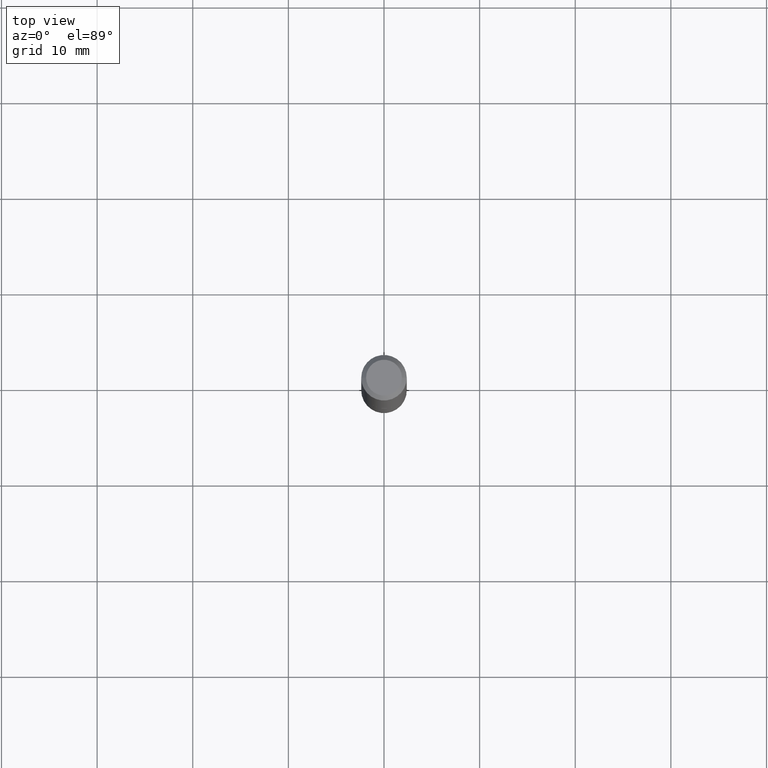
[diagram: clean part render]
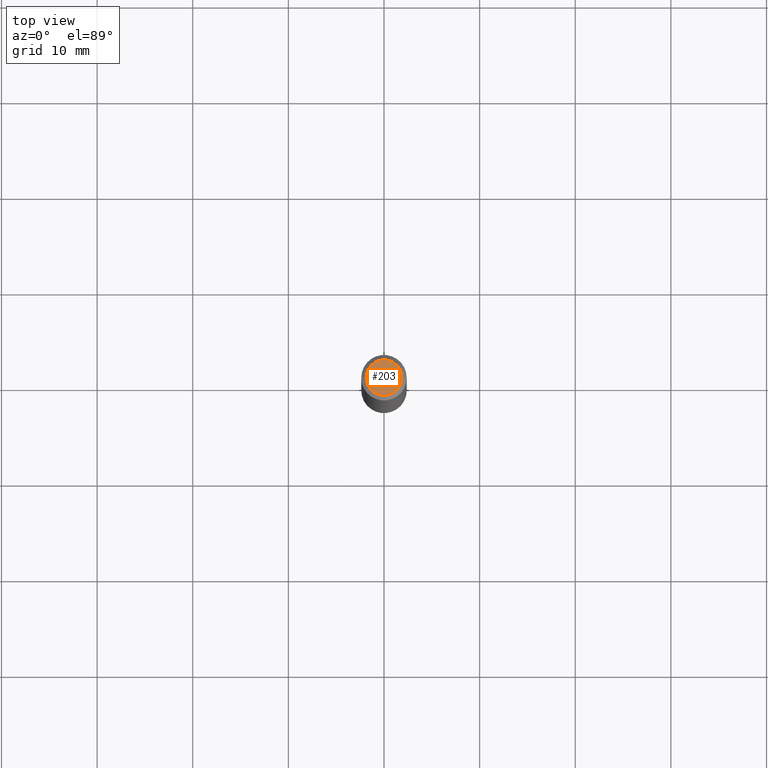
[diagram: same view with one face highlighted and labeled with its STEP entity id]
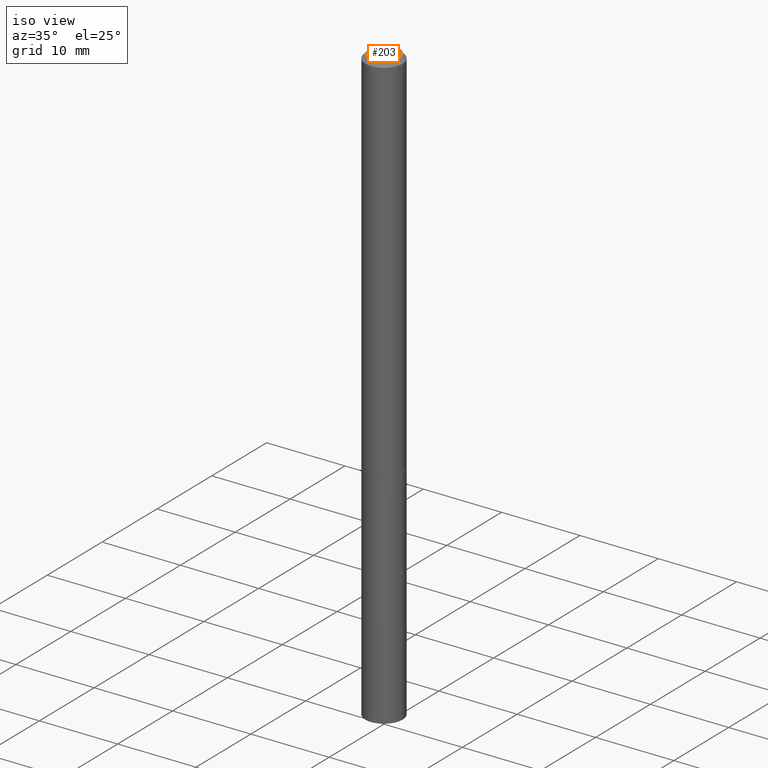
[diagram: same view with one face highlighted and labeled with its STEP entity id]
A machine part, top view. The second image highlights one B-rep face of the part: STEP entity #203.
A second angle (iso view) of the same face is appended — the face is thin or edge-on in the first view.
In plain terms, the highlighted planar face has unit normal (0, -0, -1).
Its self-contained STEP definition (entity closure, byte-faithful):
#24 = DIRECTION ( 'NONE',  ( 1.000000000000000000, -6.982962677686265922E-15, 4.876176775795935793E-29 ) ) ;
#51 = DIRECTION ( 'NONE',  ( -2.445468806185136597E-29, 3.491481338843145583E-15, 1.000000000000000000 ) ) ;
#64 = CARTESIAN_POINT ( 'NONE',  ( 0.07374999999999981570, -6.094815207017958239E-16, 3.931526600461595946E-30 ) ) ;
#98 = CIRCLE ( 'NONE', #289, 0.07374999999999981570 ) ;
#99 = EDGE_LOOP ( 'NONE', ( #105, #267 ) ) ;
#105 = ORIENTED_EDGE ( 'NONE', *, *, #270, .T. ) ;
#106 = PLANE ( 'NONE',  #351 ) ;
#109 = CARTESIAN_POINT ( 'NONE',  ( 0.000000000000000000, 0.000000000000000000, 0.000000000000000000 ) ) ;
#132 = FACE_OUTER_BOUND ( 'NONE', #99, .T. ) ;
#187 = CARTESIAN_POINT ( 'NONE',  ( 5.149934974793608091E-16, 0.07374999999999981570, -2.574967487396813413E-16 ) ) ;
#203 = ADVANCED_FACE ( 'NONE', ( #132 ), #106, .F. ) ;
#212 = DIRECTION ( 'NONE',  ( -1.000000000000000000, 6.982962677686265922E-15, -4.876176775795935793E-29 ) ) ;
#266 = VERTEX_POINT ( 'NONE', #348 ) ;
#267 = ORIENTED_EDGE ( 'NONE', *, *, #280, .T. ) ;
#268 = DIRECTION ( 'NONE',  ( -2.445468806185136597E-29, 3.491481338843145583E-15, 1.000000000000000000 ) ) ;
#270 = EDGE_CURVE ( 'NONE', #266, #324, #98, .T. ) ;
#280 = EDGE_CURVE ( 'NONE', #324, #266, #314, .T. ) ;
#289 = AXIS2_PLACEMENT_3D ( 'NONE', #315, #268, #322 ) ;
#295 = AXIS2_PLACEMENT_3D ( 'NONE', #109, #51, #24 ) ;
#314 = CIRCLE ( 'NONE', #295, 0.07374999999999981570 ) ;
#315 = CARTESIAN_POINT ( 'NONE',  ( 0.000000000000000000, 0.000000000000000000, 0.000000000000000000 ) ) ;
#322 = DIRECTION ( 'NONE',  ( 1.000000000000000000, -6.982962677686265922E-15, 4.876176775795935793E-29 ) ) ;
#324 = VERTEX_POINT ( 'NONE', #64 ) ;
#348 = CARTESIAN_POINT ( 'NONE',  ( -0.07374999999999981570, 5.499083108677918666E-16, -3.723527850031184862E-30 ) ) ;
#351 = AXIS2_PLACEMENT_3D ( 'NONE', #187, #364, #212 ) ;
#364 = DIRECTION ( 'NONE',  ( 2.438088387897960049E-29, -3.491481338843145188E-15, -1.000000000000000000 ) ) ;